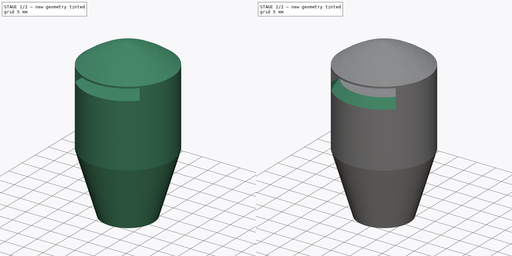
[diagram: build sequence overview — one tinted view per stage of 2, left to right]
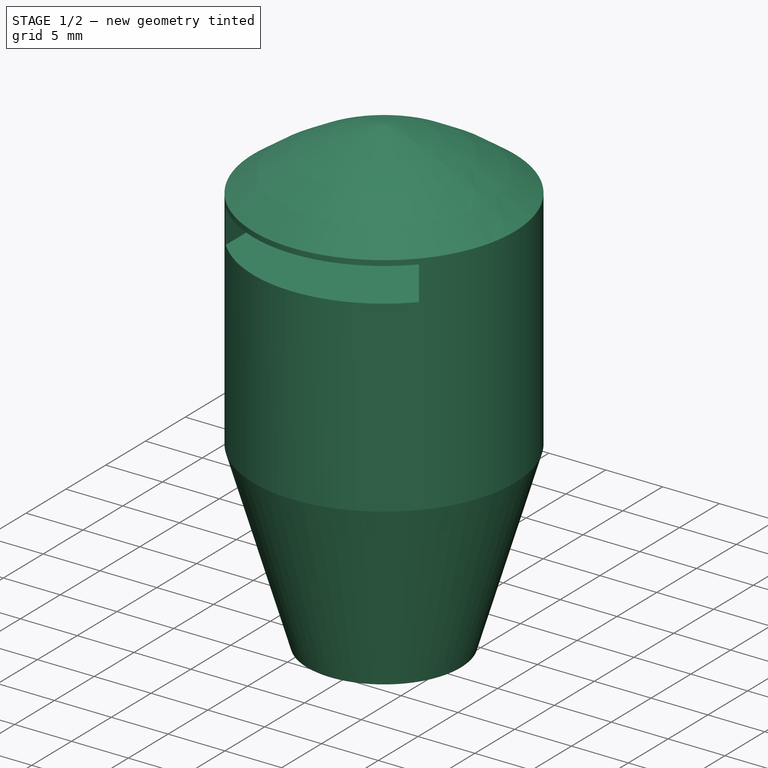
[diagram: stage 1 of 2 — iso view after this stage's code; geometry added in this stage tinted green]
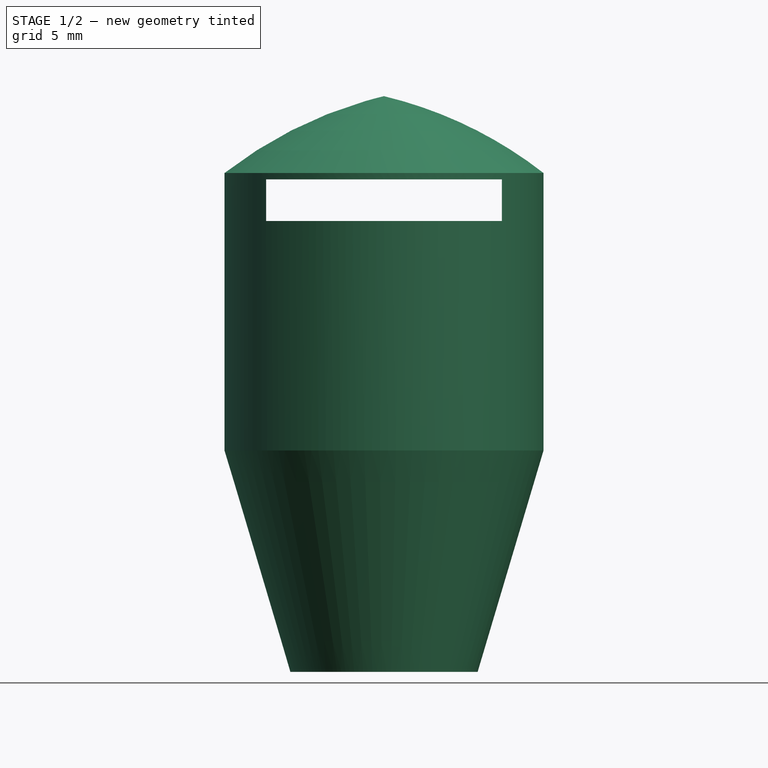
[diagram: stage 1 of 2 — front view after this stage's code; geometry added in this stage tinted green]
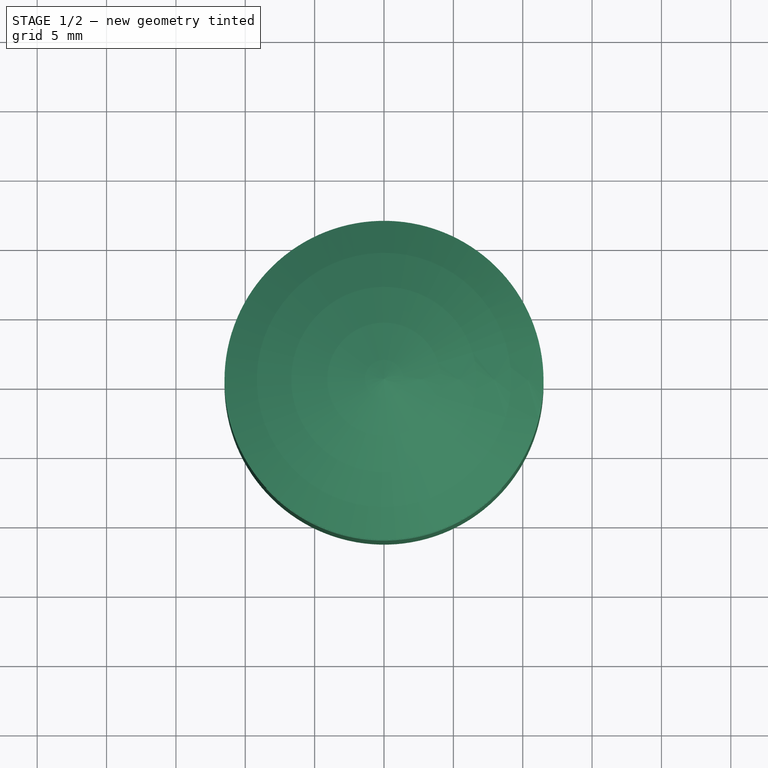
[diagram: stage 1 of 2 — top view after this stage's code; geometry added in this stage tinted green]
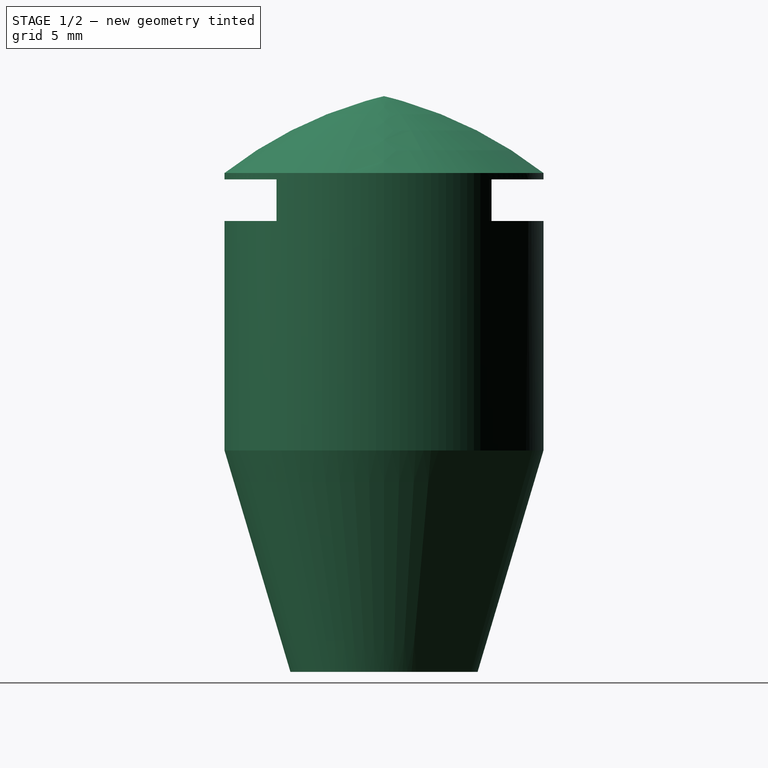
[diagram: stage 1 of 2 — right view after this stage's code; geometry added in this stage tinted green]
FCSTD DOCUMENT  (FreeCAD 1.0R39109 (Git))
Label: MarkiseStangeTarpführung
License: All rights reserved
LicenseURL: http://en.wikipedia.org/wiki/All_rights_reserved
objects: Sketcher::SketchObject×2, PartDesign::Chamfer×2, PartDesign::Revolution×1, PartDesign::Pocket×1, PartDesign::Body×1, Measure::MeasurePython×1
note: 17 computed .brp shape members not serialized (recipe doc carries the construction recipe); baked Part::Feature solids carry a one-line shape summary decoded from their .brp

FEATURE [Sketcher::SketchObject] Sketch
  ArcFitTolerance = 1e-06
  AttachmentSupport = -> [XZ_Plane]
  FullyConstrained = true
  MakeInternals = false
  MapMode = 5
  Placement = pos=(0,0,0) rot=(1,0,0;1.5708rad)
  sketch-geometry (9):
    g0: LineSegment StartX=4.75 StartY=0 StartZ=0 EndX=6.75 EndY=0 EndZ=0
    g1: LineSegment StartX=6.75 StartY=0 StartZ=0 EndX=11.5 EndY=15.96 EndZ=0
    g2: LineSegment StartX=11.5 StartY=15.96 StartZ=0 EndX=11.5 EndY=35.96 EndZ=0
    g3: LineSegment StartX=-7.86e-13 StartY=41.5 StartZ=0 EndX=-7.86e-13 EndY=31.5 EndZ=0
    g4: LineSegment StartX=-7.86e-13 StartY=31.5 StartZ=0 EndX=3.75 EndY=31.5 EndZ=0
    g5: ArcOfCircle CenterX=-7.00759 CenterY=12.2476 CenterZ=0 NormalX=0 NormalY=0 NormalZ=1 AngleXU=0 Radius=30.08 StartAngle=0.908057 EndAngle=1.33567
    g6: LineSegment StartX=4.75 StartY=0 StartZ=0 EndX=4.75 EndY=15 EndZ=0
    g7: LineSegment StartX=4.75 StartY=15 StartZ=0 EndX=3.75 EndY=15 EndZ=0
    g8: LineSegment StartX=3.75 StartY=15 StartZ=0 EndX=3.75 EndY=31.5 EndZ=0
  constraints (28):
    c: PointOnObject(g0,g-1)
    c: PointOnObject(g0,g-1)
    c: Coincident(g0,g1)
    c: Coincident(g1,g2)
    c: Vertical(g2)
    c: Vertical(g3)
    c: Coincident(g3,g4)
    c: Horizontal(g4)
    c: Coincident(g5,g2)
    c: Coincident(g5,g3)
    c: DistanceX(g-1,g0) = 4.75
    c: Coincident(g0,g6)
    c: Vertical(g6)
    c: Coincident(g6,g7)
    c: Coincident(g7,g8)
    c: Coincident(g8,g4)
    c: Vertical(g8)
    c: Horizontal(g7)
    c: DistanceX(g4,g4) = 3.75
    c: DistanceY(g8,g8) = 16.5
    c: DistanceY(g3,g3) = 10
    c: PointOnObject(g3,g-2)
    c: DistanceY(g6,g6) = 15
    c: DistanceX(g0,g0) = 2
    c: Distance(g3,g2) = 11.5
    c: DistanceY(g2,g2) = 20
    c: Distance(g1,g-1) = 15.96
    c: Radius(g5) = 30.08
FEATURE [PartDesign::Revolution] Revolution
  Angle = 360
  Angle2 = 60
  Axis = (0,2e-16,1)
  Base = (0,0,0)
  Placement = pos=(0,0,0) rot=(1,0,0;1.5708rad)
  Profile = -> Sketch
  ReferenceAxis = -> Sketch [V_Axis]
  Reversed = true
  Suppressed = false
  Type = 0
FEATURE [Sketcher::SketchObject] Sketch001
  ArcFitTolerance = 1e-06
  AttachmentSupport = -> [XZ_Plane]
  FullyConstrained = true
  MakeInternals = false
  MapMode = 5
  Placement = pos=(0,0,0) rot=(1,0,0;1.5708rad)
  sketch-geometry (5):
    g0: LineSegment StartX=-8.5 StartY=35.5 StartZ=0 EndX=-8.5 EndY=32.5 EndZ=0
    g1: LineSegment StartX=-8.5 StartY=32.5 StartZ=0 EndX=8.5 EndY=32.5 EndZ=0
    g2: LineSegment StartX=8.5 StartY=32.5 StartZ=0 EndX=8.5 EndY=35.5 EndZ=0
    g3: LineSegment StartX=8.5 StartY=35.5 StartZ=0 EndX=-8.5 EndY=35.5 EndZ=0
    g4: GeomPoint [constr] X=0 Y=34 Z=0
  constraints (13):
    c: Coincident(g0,g1)
    c: Coincident(g1,g2)
    c: Coincident(g2,g3)
    c: Coincident(g3,g0)
    c: Vertical(g0)
    c: Vertical(g2)
    c: Horizontal(g1)
    c: Horizontal(g3)
    c: Symmetric(g2,g0,g4)
    c: PointOnObject(g4,g-2)
    c: DistanceY(g2,g2) = 3
    c: DistanceX(g3,g3) = 17
    c: Distance(g1,g-1) = 32.5
FEATURE [PartDesign::Pocket] Pocket
  BaseFeature = -> Revolution
  Direction = (0,1,-2e-16)
  Length = 5
  Length2 = 5
  Midplane = true
  Placement = pos=(0,0,0) rot=(1,0,0;1.5708rad)
  Profile = -> Sketch001
  ReferenceAxis = -> Sketch001 [N_Axis]
  Suppressed = false
  Type = 1
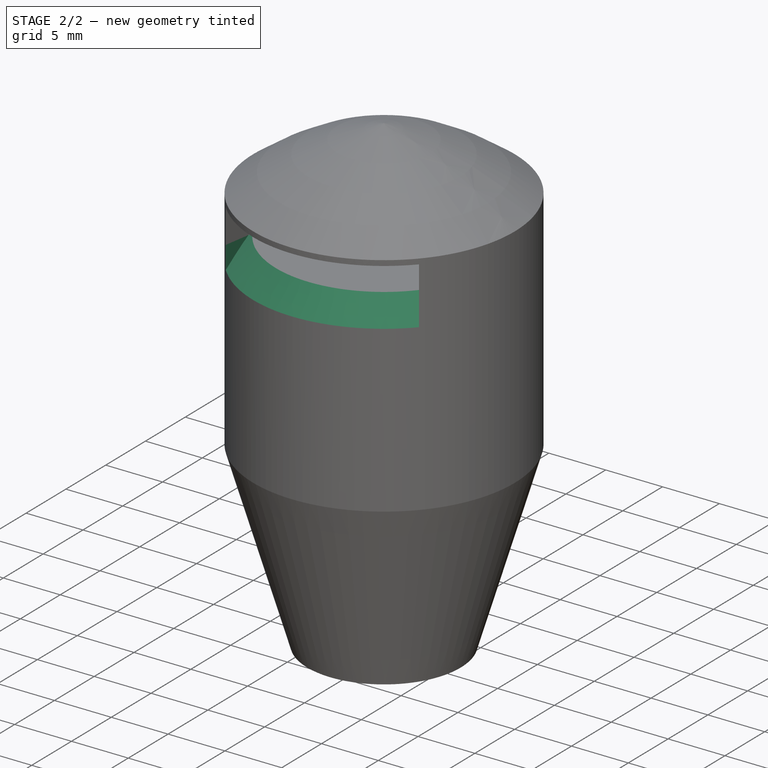
[diagram: stage 2 of 2 — iso view after this stage's code; geometry added in this stage tinted green]
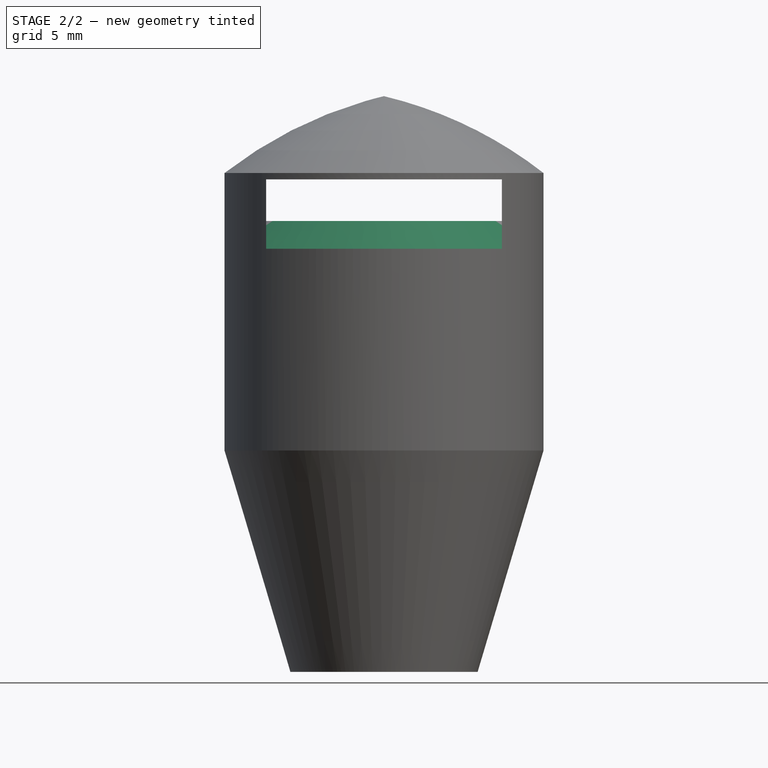
[diagram: stage 2 of 2 — front view after this stage's code; geometry added in this stage tinted green]
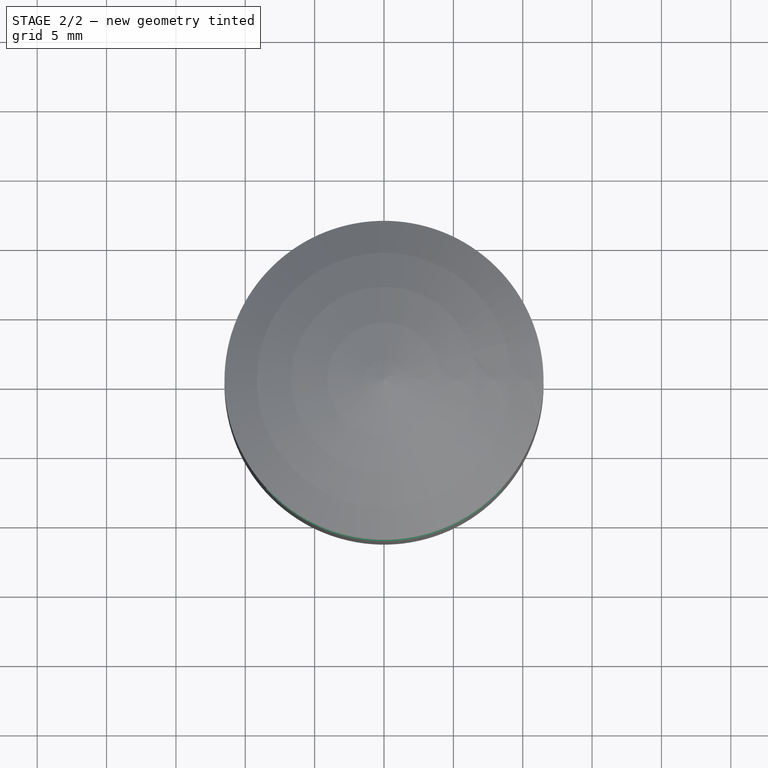
[diagram: stage 2 of 2 — top view after this stage's code; geometry added in this stage tinted green]
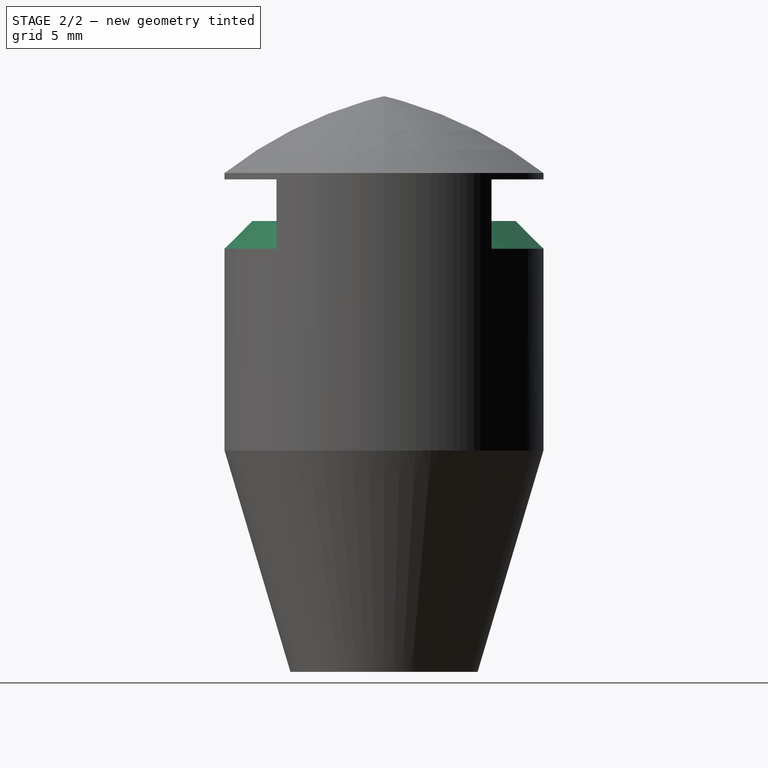
[diagram: stage 2 of 2 — right view after this stage's code; geometry added in this stage tinted green]
FEATURE [PartDesign::Chamfer] Chamfer
  Angle = 45
  Base = -> Pocket [Edge14]
  BaseFeature = -> Pocket
  ChamferType = 0
  FlipDirection = false
  Placement = pos=(0,0,0) rot=(1,0,0;1.5708rad)
  Size = 2
  Size2 = 1
  SupportTransform = false
  Suppressed = false
  UseAllEdges = false
FEATURE [PartDesign::Chamfer] Chamfer001
  Angle = 45
  Base = -> Chamfer [Edge13]
  BaseFeature = -> Chamfer
  ChamferType = 0
  FlipDirection = false
  Placement = pos=(0,0,0) rot=(1,0,0;1.5708rad)
  Size = 2
  Size2 = 1
  SupportTransform = false
  Suppressed = false
  UseAllEdges = false
FEATURE [PartDesign::Body] Body  label="Körper"
  AllowCompound = false
  Group = -> [Sketch,Revolution,Sketch001,Pocket,Chamfer,Chamfer001]
  Origin = -> Origin
  Tip = -> Chamfer001
FEATURE [Measure::MeasurePython] Center_of_Mass  label="Center_of_Mass: COM
X: 0,00 mm
Y: 0,00 mm
Z: 21,55 mm"  # WARN: FeaturePython — macro-defined, semantics opaque (R4)
  Element = -> Body
  Placement = pos=(2.941e-12,5.2e-15,21.5506) rot=(0,0,1;0rad)
  Result = (2.941e-12,5.2e-15,21.5506)
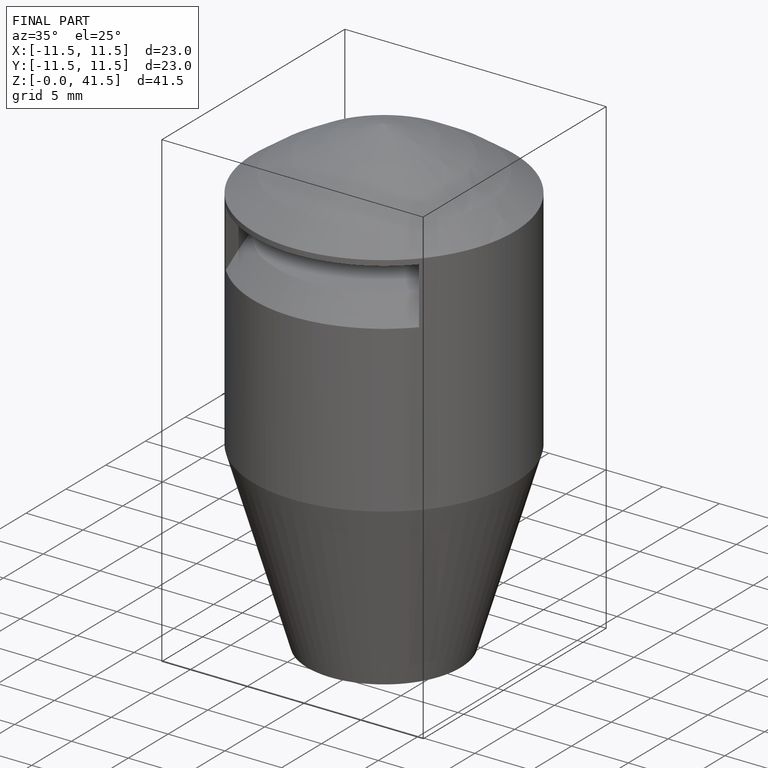
[diagram: finished part — iso view with bounding-box wireframe]
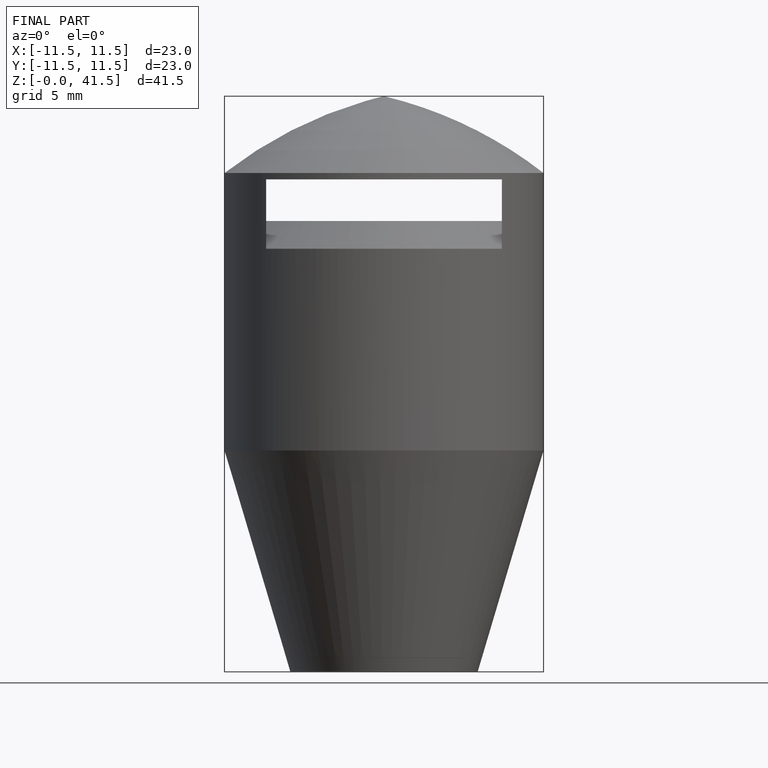
[diagram: finished part — front view with bounding-box wireframe]
